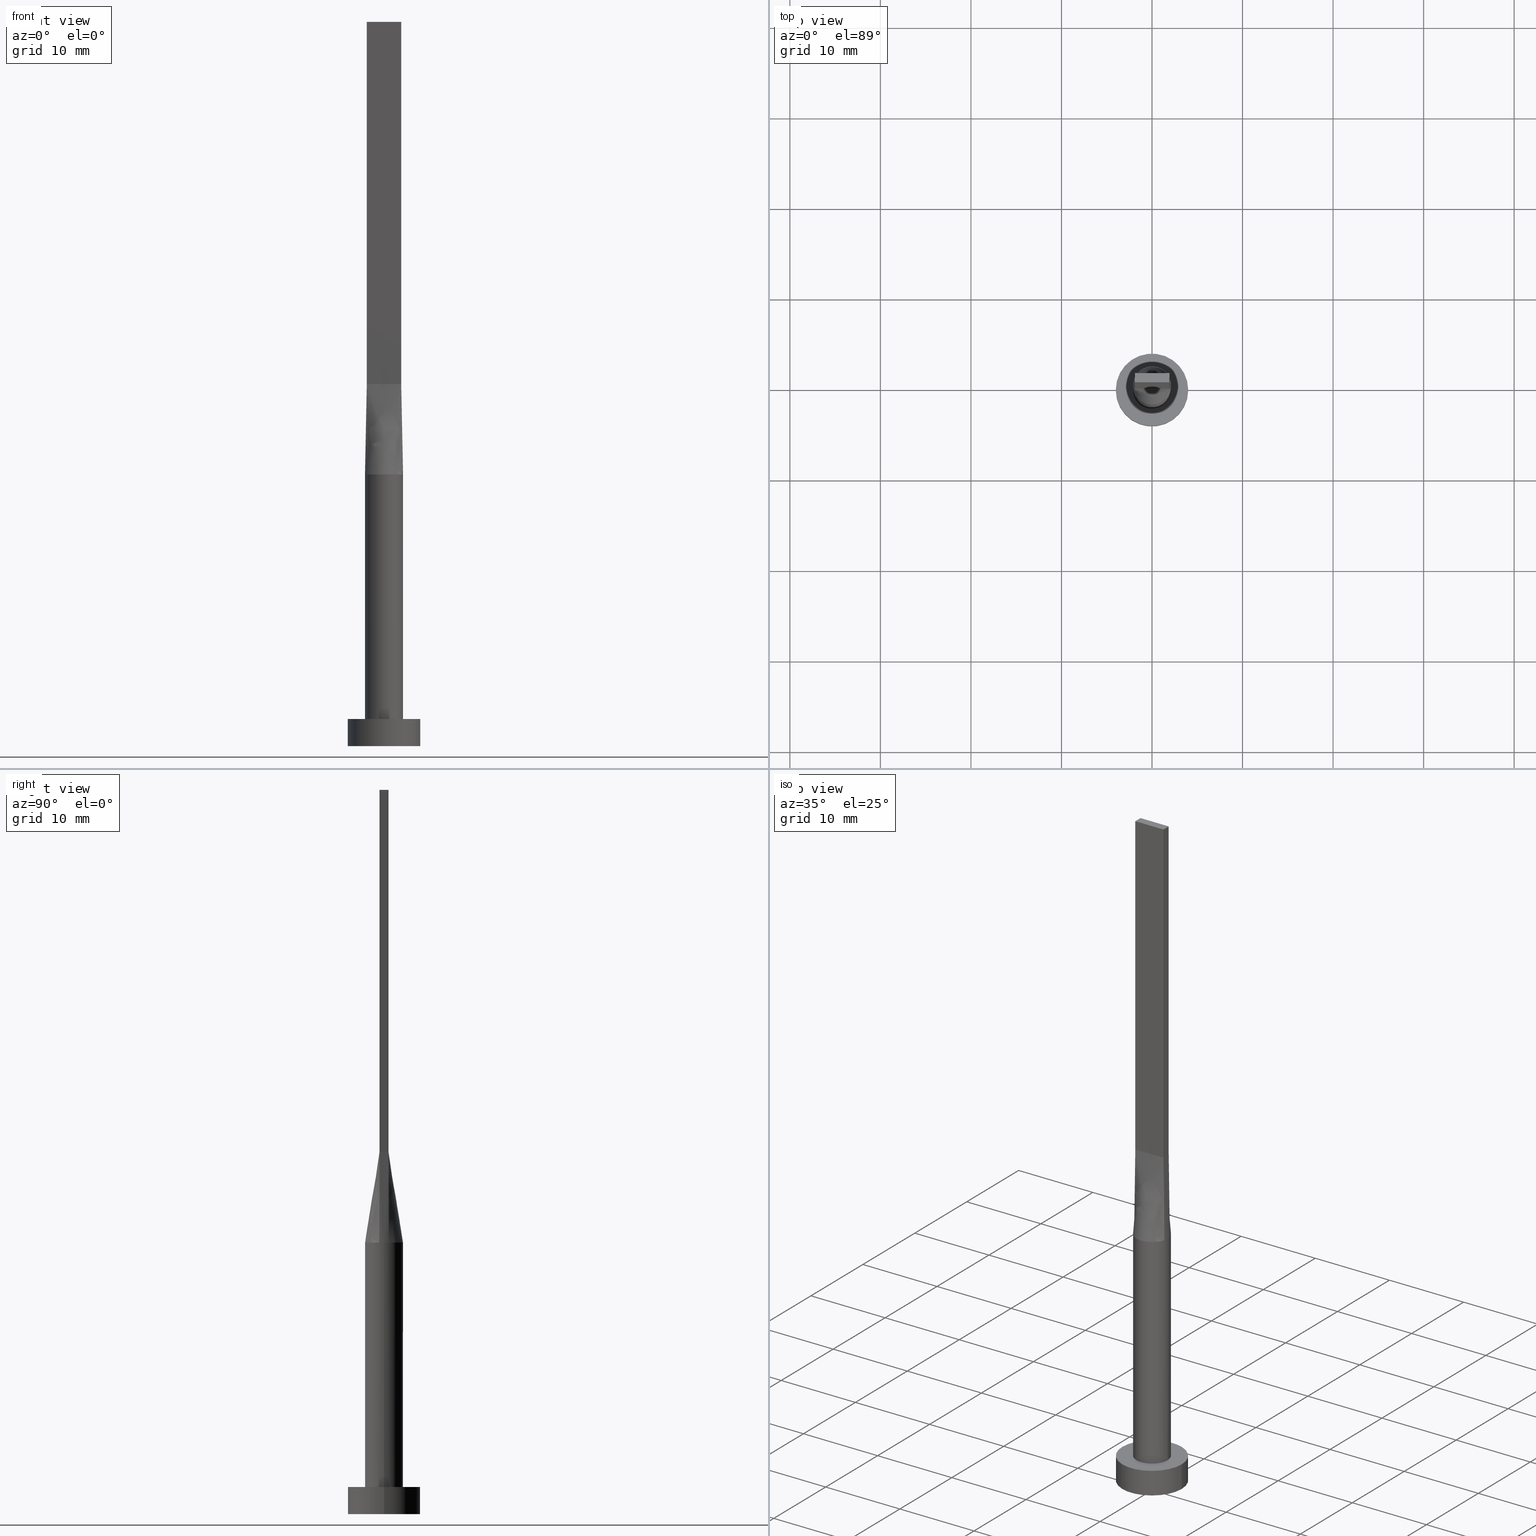
[diagram: canonical four-view strip — front | top / right | iso, engineering-drawing reading convention]
A machine part, canonical four-view strip (front | top / right | iso — engineering-drawing reading convention). The complete STEP part file that produces these views, byte-faithful:
ISO-10303-21;
HEADER;
FILE_DESCRIPTION (( 'STEP AP203' ),
    '1' );
FILE_NAME ('8962.STEP',
    '2023-02-13T11:25:45',
    ( '' ),
    ( '' ),
    'SwSTEP 2.0',
    'SolidWorks 2019',
    '' );
FILE_SCHEMA (( 'CONFIG_CONTROL_DESIGN' ));
ENDSEC;

DATA;
#1 = EDGE_CURVE ( 'NONE', #156, #295, #469, .T. ) ;
#2 = CARTESIAN_POINT ( 'NONE',  ( -1.583604922800830428, 1.399063468093436402, 29.99999999999999289 ) ) ;
#3 = AXIS2_PLACEMENT_3D ( 'NONE', #362, #480, #24 ) ;
#4 = EDGE_CURVE ( 'NONE', #156, #260, #410, .T. ) ;
#5 = DIRECTION ( 'NONE',  ( 0.000000000000000000, 0.000000000000000000, 1.000000000000000000 ) ) ;
#6 = CARTESIAN_POINT ( 'NONE',  ( 4.000000000000000000, 4.898587196589412829E-16, 0.000000000000000000 ) ) ;
#7 = ORIENTED_EDGE ( 'NONE', *, *, #224, .F. ) ;
#8 = CARTESIAN_POINT ( 'NONE',  ( 0.2698109971861026857, -2.100000000000000977, 30.00000000000001066 ) ) ;
#9 = AXIS2_PLACEMENT_3D ( 'NONE', #398, #450, #498 ) ;
#10 = CARTESIAN_POINT ( 'NONE',  ( 2.076193315816325047, 0.3621561357411385851, 30.00000000000000355 ) ) ;
#11 = LINE ( 'NONE', #509, #113 ) ;
#12 = DIRECTION ( 'NONE',  ( 0.000000000000000000, 0.000000000000000000, 1.000000000000000000 ) ) ;
#13 = CARTESIAN_POINT ( 'NONE',  ( 1.583604922800829984, -1.399063468093436846, 29.99999999999998934 ) ) ;
#14 = EDGE_CURVE ( 'NONE', #488, #80, #297, .T. ) ;
#15 = DATE_TIME_ROLE ( 'creation_date' ) ;
#16 = CARTESIAN_POINT ( 'NONE',  ( 1.021961681204344830, -1.852908961101259910, 30.00000000000000000 ) ) ;
#17 = CARTESIAN_POINT ( 'NONE',  ( 0.000000000000000000, 0.000000000000000000, 30.00000000000000000 ) ) ;
#18 = APPROVAL ( #57, 'NEUR�EN�' ) ;
#19 = ORIENTED_EDGE ( 'NONE', *, *, #270, .T. ) ;
#20 = PERSON_AND_ORGANIZATION ( #27, #169 ) ;
#21 = DIRECTION ( 'NONE',  ( -2.168404344971009361E-16, -1.000000000000000000, 0.000000000000000000 ) ) ;
#22 = ORIENTED_EDGE ( 'NONE', *, *, #190, .T. ) ;
#23 = CARTESIAN_POINT ( 'NONE',  ( 0.6333333333333344140, -0.4999999999999997780, 39.99999999999999289 ) ) ;
#24 = DIRECTION ( 'NONE',  ( -1.000000000000000000, 0.000000000000000000, 0.000000000000000000 ) ) ;
#25 = DIRECTION ( 'NONE',  ( -0.000000000000000000, -0.000000000000000000, -1.000000000000000000 ) ) ;
#26 = B_SPLINE_SURFACE_WITH_KNOTS ( 'NONE', 3, 1, ( 
 ( #143, #106 ),
 ( #463, #466 ),
 ( #274, #559 ),
 ( #549, #382 ),
 ( #65, #470 ),
 ( #433, #54 ) ),
 .UNSPECIFIED., .F., .F., .F.,
 ( 4, 2, 4 ),
 ( 2, 2 ),
 ( 0.000000000000000000, 0.5000000000000000000, 1.000000000000000000 ),
 ( 0.000000000000000000, 1.000000000000000000 ),
 .UNSPECIFIED. ) ;
#27 = PERSON ( 'NEUR�EN�', 'NEUR�EN�', 'NEUR�EN�', ('NEUR�EN�'), ('NEUR�EN�'), ('NEUR�EN�') ) ;
#28 = FACE_OUTER_BOUND ( 'NONE', #50, .T. ) ;
#29 = CARTESIAN_POINT ( 'NONE',  ( 0.5389299406762297906, 2.046272663899431077, 30.00000000000000355 ) ) ;
#30 = CARTESIAN_POINT ( 'NONE',  ( 1.899999999999999023, -0.4999999999999997780, 40.00000000000000000 ) ) ;
#31 = VERTEX_POINT ( 'NONE', #255 ) ;
#32 = DIRECTION ( 'NONE',  ( -1.000000000000000000, 5.706327223607918787E-17, 0.000000000000000000 ) ) ;
#33 = EDGE_LOOP ( 'NONE', ( #462, #160, #440, #262 ) ) ;
#34 = CARTESIAN_POINT ( 'NONE',  ( -1.719043754744861596, 1.223020672007445242, 29.99999999999999289 ) ) ;
#35 = CARTESIAN_POINT ( 'NONE',  ( -2.031004407172260162, -0.5344754071304557153, 30.00000000000000000 ) ) ;
#36 = DIRECTION ( 'NONE',  ( -0.000000000000000000, -0.000000000000000000, -1.000000000000000000 ) ) ;
#37 = FACE_OUTER_BOUND ( 'NONE', #38, .T. ) ;
#38 = EDGE_LOOP ( 'NONE', ( #123, #534, #168, #132 ) ) ;
#39 = VECTOR ( 'NONE', #368, 1000.000000000000000 ) ;
#40 = EDGE_CURVE ( 'NONE', #80, #472, #249, .T. ) ;
#41 = LOCAL_TIME ( 12, 25, 45.00000000000000000, #552 ) ;
#42 = CARTESIAN_POINT ( 'NONE',  ( -1.235326090059015725, -1.714395692508636104, 29.99999999999998224 ) ) ;
#43 = DIRECTION ( 'NONE',  ( 1.000000000000000000, 0.000000000000000000, 0.000000000000000000 ) ) ;
#44 = CARTESIAN_POINT ( 'NONE',  ( 0.3166666666666676511, -0.4999999999999997780, 39.99999999999999289 ) ) ;
#45 = CARTESIAN_POINT ( 'NONE',  ( 4.000000000000000000, 4.898587196589412829E-16, 3.000000000000000000 ) ) ;
#46 = CARTESIAN_POINT ( 'NONE',  ( 1.021961681204346606, 1.852908961101259244, 30.00000000000000355 ) ) ;
#47 = EDGE_CURVE ( 'NONE', #260, #272, #79, .T. ) ;
#48 = VERTEX_POINT ( 'NONE', #432 ) ;
#49 = AXIS2_PLACEMENT_3D ( 'NONE', #399, #571, #163 ) ;
#50 = EDGE_LOOP ( 'NONE', ( #322, #467, #136, #526, #119, #513 ) ) ;
#51 = ORIENTED_EDGE ( 'NONE', *, *, #253, .F. ) ;
#52 = CALENDAR_DATE ( 2023, 13, 2 ) ;
#53 = B_SPLINE_CURVE_WITH_KNOTS ( 'NONE', 3,
 ( #481, #566, #294, #412, #538, #83, #46, #414, #542, #263, #315, #222, #496, #2, #130, #313, #264, #446 ),
 .UNSPECIFIED., .F., .F.,
 ( 4, 2, 2, 2, 2, 2, 2, 2, 4 ),
 ( 0.000000000000000000, 0.1250000000000000278, 0.2500000000000000555, 0.3750000000000001110, 0.5000000000000000000, 0.6250000000000000000, 0.7500000000000000000, 0.8750000000000001110, 1.000000000000000000 ),
 .UNSPECIFIED. ) ;
#54 = CARTESIAN_POINT ( 'NONE',  ( -1.899999999999999911, -0.4999999999999995559, 40.00000000000000000 ) ) ;
#55 = ORIENTED_EDGE ( 'NONE', *, *, #98, .F. ) ;
#56 = ADVANCED_FACE ( 'NONE', ( #351 ), #346, .F. ) ;
#57 = APPROVAL_STATUS ( 'not_yet_approved' ) ;
#58 = LINE ( 'NONE', #475, #373 ) ;
#59 = EDGE_LOOP ( 'NONE', ( #520, #565, #19, #383 ) ) ;
#60 = PERSON_AND_ORGANIZATION_ROLE ( 'design_supplier' ) ;
#61 = CARTESIAN_POINT ( 'NONE',  ( 4.000000000000000000, 4.898587196589412829E-16, 3.000000000000000000 ) ) ;
#62 = ORIENTED_EDGE ( 'NONE', *, *, #492, .F. ) ;
#63 = APPROVAL_DATE_TIME ( #476, #312 ) ;
#64 = ADVANCED_FACE ( 'NONE', ( #285 ), #402, .F. ) ;
#65 = CARTESIAN_POINT ( 'NONE',  ( -2.076193315816325491, -0.3621561357411375859, 30.00000000000000355 ) ) ;
#66 = VECTOR ( 'NONE', #318, 1000.000000000000000 ) ;
#67 = CC_DESIGN_SECURITY_CLASSIFICATION ( #471, ( #570 ) ) ;
#68 = CARTESIAN_POINT ( 'NONE',  ( 0.000000000000000000, 0.000000000000000000, 30.00000000000000000 ) ) ;
#69 = DIRECTION ( 'NONE',  ( 1.000000000000000000, -5.706327223607920020E-17, 0.000000000000000000 ) ) ;
#70 = ORIENTED_EDGE ( 'NONE', *, *, #316, .T. ) ;
#71 = DIRECTION ( 'NONE',  ( -0.000000000000000000, -0.000000000000000000, -1.000000000000000000 ) ) ;
#72 = CARTESIAN_POINT ( 'NONE',  ( -0.7916666666666650753, -0.4999999999999995559, 39.99999999999999289 ) ) ;
#73 = CYLINDRICAL_SURFACE ( 'NONE', #3, 4.000000000000000000 ) ;
#74 = VERTEX_POINT ( 'NONE', #252 ) ;
#75 = EDGE_CURVE ( 'NONE', #74, #275, #53, .T. ) ;
#76 = FACE_OUTER_BOUND ( 'NONE', #95, .T. ) ;
#77 = DIRECTION ( 'NONE',  ( -0.01308445504626047293, -0.003443277643752733208, -0.9999084662483913588 ) ) ;
#78 = CARTESIAN_POINT ( 'NONE',  ( -1.021961681204347050, -1.852908961101258578, 29.99999999999999289 ) ) ;
#79 = CIRCLE ( 'NONE', #490, 4.000000000000000000 ) ;
#80 = VERTEX_POINT ( 'NONE', #35 ) ;
#81 = VECTOR ( 'NONE', #21, 1000.000000000000000 ) ;
#82 = DIRECTION ( 'NONE',  ( -6.505213034913026604E-16, -1.000000000000000000, 0.000000000000000000 ) ) ;
#83 = CARTESIAN_POINT ( 'NONE',  ( 1.235326090059014614, 1.714395692508636770, 30.00000000000001421 ) ) ;
#84 = CARTESIAN_POINT ( 'NONE',  ( 1.583333333333332815, 0.5000000000000002220, 40.00000000000000000 ) ) ;
#85 = CARTESIAN_POINT ( 'NONE',  ( 1.987786580065029174, 0.6981017315960605929, 30.00000000000000355 ) ) ;
#86 = CARTESIAN_POINT ( 'NONE',  ( -1.965428264125778535, 0.5172179642436262048, 35.00000000000000000 ) ) ;
#87 = CIRCLE ( 'NONE', #304, 2.100000000000000089 ) ;
#88 = CARTESIAN_POINT ( 'NONE',  ( -2.030856528251557602, 0.5344359284872521876, 30.00000000000000000 ) ) ;
#89 = ADVANCED_FACE ( 'NONE', ( #37 ), #116, .T. ) ;
#90 = CARTESIAN_POINT ( 'NONE',  ( 0.6333333333333323045, 0.5000000000000002220, 39.99999999999999289 ) ) ;
#91 = ORIENTED_EDGE ( 'NONE', *, *, #464, .T. ) ;
#92 = VECTOR ( 'NONE', #122, 1000.000000000000000 ) ;
#93 = CARTESIAN_POINT ( 'NONE',  ( -0.6333333333333316384, -0.4999999999999996669, 39.99999999999999289 ) ) ;
#94 = FACE_OUTER_BOUND ( 'NONE', #435, .T. ) ;
#95 = EDGE_LOOP ( 'NONE', ( #454, #523, #575, #221, #99 ) ) ;
#96 = CARTESIAN_POINT ( 'NONE',  ( 1.899999999999999689, -0.3333333333333329263, 39.99999999999999289 ) ) ;
#97 = DIRECTION ( 'NONE',  ( -2.168404344971008868E-16, 1.000000000000000000, -0.000000000000000000 ) ) ;
#98 = EDGE_CURVE ( 'NONE', #275, #31, #293, .T. ) ;
#99 = ORIENTED_EDGE ( 'NONE', *, *, #150, .F. ) ;
#100 = ORIENTED_EDGE ( 'NONE', *, *, #166, .F. ) ;
#101 = AXIS2_PLACEMENT_3D ( 'NONE', #407, #501, #43 ) ;
#102 = COORDINATED_UNIVERSAL_TIME_OFFSET ( 1, 0, .AHEAD. ) ;
#103 = CIRCLE ( 'NONE', #406, 2.100000000000000089 ) ;
#104 = CARTESIAN_POINT ( 'NONE',  ( 1.266666666666667052, -0.4999999999999997780, 40.00000000000000000 ) ) ;
#105 = CC_DESIGN_PERSON_AND_ORGANIZATION_ASSIGNMENT ( #236, #474, ( #229 ) ) ;
#106 = CARTESIAN_POINT ( 'NONE',  ( -1.899999999999999689, 0.5000000000000002220, 40.00000000000000000 ) ) ;
#107 = ORIENTED_EDGE ( 'NONE', *, *, #4, .T. ) ;
#108 = PRODUCT_DEFINITION_SHAPE ( 'NONE', 'NONE',  #229 ) ;
#109 = CARTESIAN_POINT ( 'NONE',  ( 0.000000000000000000, 0.000000000000000000, 3.000000000000000000 ) ) ;
#110 = LINE ( 'NONE', #291, #356 ) ;
#111 = EDGE_LOOP ( 'NONE', ( #22, #219, #306, #427 ) ) ;
#112 = PERSON_AND_ORGANIZATION ( #27, #169 ) ;
#113 = VECTOR ( 'NONE', #519, 1000.000000000000000 ) ;
#114 = CARTESIAN_POINT ( 'NONE',  ( 1.899999999999999689, 0.5000000000000002220, 80.00000000000000000 ) ) ;
#115 = VECTOR ( 'NONE', #71, 1000.000000000000000 ) ;
#116 = B_SPLINE_SURFACE_WITH_KNOTS ( 'NONE', 3, 1, ( 
 ( #215, #218 ),
 ( #85, #453 ),
 ( #172, #84 ),
 ( #493, #411 ),
 ( #449, #364 ),
 ( #544, #167 ),
 ( #503, #90 ),
 ( #29, #376 ),
 ( #276, #144 ),
 ( #514, #327 ),
 ( #551, #234 ),
 ( #197, #332 ),
 ( #211, #283 ),
 ( #401, #489 ),
 ( #34, #355 ),
 ( #240, #443 ),
 ( #193, #244 ),
 ( #88, #371 ) ),
 .UNSPECIFIED., .F., .F., .F.,
 ( 4, 2, 2, 2, 2, 2, 2, 2, 4 ),
 ( 2, 2 ),
 ( 0.000000000000000000, 0.1250000000000000278, 0.2500000000000000555, 0.3750000000000001110, 0.5000000000000000000, 0.6250000000000000000, 0.7500000000000000000, 0.8750000000000001110, 1.000000000000000000 ),
 ( 0.000000000000000000, 1.000000000000000000 ),
 .UNSPECIFIED. ) ;
#117 = LINE ( 'NONE', #521, #434 ) ;
#118 = LINE ( 'NONE', #305, #153 ) ;
#119 = ORIENTED_EDGE ( 'NONE', *, *, #366, .T. ) ;
#120 = EDGE_CURVE ( 'NONE', #188, #486, #226, .T. ) ;
#121 = CARTESIAN_POINT ( 'NONE',  ( 1.899999999999999023, -0.4999999999999997780, 80.00000000000000000 ) ) ;
#122 = DIRECTION ( 'NONE',  ( 6.505213034913026604E-16, 1.000000000000000000, 0.000000000000000000 ) ) ;
#123 = ORIENTED_EDGE ( 'NONE', *, *, #75, .T. ) ;
#124 = VECTOR ( 'NONE', #77, 1000.000000000000114 ) ;
#125 = EDGE_LOOP ( 'NONE', ( #148, #280, #510, #574, #55, #567 ) ) ;
#126 =( GEOMETRIC_REPRESENTATION_CONTEXT ( 3 ) GLOBAL_UNCERTAINTY_ASSIGNED_CONTEXT ( ( #448 ) ) GLOBAL_UNIT_ASSIGNED_CONTEXT ( ( #258, #395, #358 ) ) REPRESENTATION_CONTEXT ( 'NONE', 'WORKASPACE' ) );
#127 = CC_DESIGN_DATE_AND_TIME_ASSIGNMENT ( #189, #15, ( #229 ) ) ;
#128 = CARTESIAN_POINT ( 'NONE',  ( -1.899999999999999689, 0.5000000000000002220, 80.00000000000000000 ) ) ;
#129 = DESIGN_CONTEXT ( 'detailed design', #208, 'design' ) ;
#130 = CARTESIAN_POINT ( 'NONE',  ( -1.719043754744861596, 1.223020672007445242, 29.99999999999999289 ) ) ;
#131 = CARTESIAN_POINT ( 'NONE',  ( -1.719043754744862484, -1.223020672007444798, 29.99999999999998224 ) ) ;
#132 = ORIENTED_EDGE ( 'NONE', *, *, #325, .F. ) ;
#133 = AXIS2_PLACEMENT_3D ( 'NONE', #121, #265, #82 ) ;
#134 = CARTESIAN_POINT ( 'NONE',  ( -2.100000000000000089, 0.000000000000000000, 3.000000000000000000 ) ) ;
#135 = CARTESIAN_POINT ( 'NONE',  ( -0.5389299406762309008, -2.046272663899432409, 30.00000000000000711 ) ) ;
#136 = ORIENTED_EDGE ( 'NONE', *, *, #40, .F. ) ;
#137 = CARTESIAN_POINT ( 'NONE',  ( 2.100000000000000089, 0.1811271572287802556, 30.00000000000000000 ) ) ;
#138 = CARTESIAN_POINT ( 'NONE',  ( -1.899999999999999911, -0.4999999999999995559, 40.00000000000000000 ) ) ;
#139 = AXIS2_PLACEMENT_3D ( 'NONE', #205, #338, #298 ) ;
#140 = CARTESIAN_POINT ( 'NONE',  ( -0.1583333333333323267, -0.4999999999999997780, 40.00000000000000000 ) ) ;
#141 = ADVANCED_FACE ( 'NONE', ( #321 ), #147, .T. ) ;
#142 = CARTESIAN_POINT ( 'NONE',  ( 1.899999999999999911, -0.4999999999999997780, 40.00000000000000000 ) ) ;
#143 = CARTESIAN_POINT ( 'NONE',  ( -2.030856528251557602, 0.5344359284872521876, 30.00000000000000000 ) ) ;
#144 = CARTESIAN_POINT ( 'NONE',  ( 0.1583333333333324933, 0.5000000000000002220, 39.99999999999999289 ) ) ;
#145 = APPROVAL_DATE_TIME ( #431, #214 ) ;
#146 = CARTESIAN_POINT ( 'NONE',  ( 0.5389299406762287914, -2.046272663899431965, 30.00000000000000355 ) ) ;
#147 = PLANE ( 'NONE',  #415 ) ;
#148 = ORIENTED_EDGE ( 'NONE', *, *, #413, .F. ) ;
#149 = CARTESIAN_POINT ( 'NONE',  ( -1.899999999999999689, 0.5000000000000002220, 40.00000000000000000 ) ) ;
#150 = EDGE_CURVE ( 'NONE', #472, #336, #58, .T. ) ;
#151 = VECTOR ( 'NONE', #97, 1000.000000000000000 ) ;
#152 = PERSON_AND_ORGANIZATION ( #27, #169 ) ;
#153 = VECTOR ( 'NONE', #254, 1000.000000000000000 ) ;
#154 = DIRECTION ( 'NONE',  ( 0.000000000000000000, -0.000000000000000000, -1.000000000000000000 ) ) ;
#155 = FACE_OUTER_BOUND ( 'NONE', #111, .T. ) ;
#156 = VERTEX_POINT ( 'NONE', #61 ) ;
#157 = ORIENTED_EDGE ( 'NONE', *, *, #120, .T. ) ;
#158 = DIRECTION ( 'NONE',  ( 1.000000000000000000, 0.000000000000000000, 0.000000000000000000 ) ) ;
#159 = CARTESIAN_POINT ( 'NONE',  ( -1.899999999999999911, -0.4999999999999995559, 40.00000000000000000 ) ) ;
#160 = ORIENTED_EDGE ( 'NONE', *, *, #473, .F. ) ;
#161 = EDGE_CURVE ( 'NONE', #336, #486, #196, .T. ) ;
#162 = CYLINDRICAL_SURFACE ( 'NONE', #199, 2.100000000000000089 ) ;
#163 = DIRECTION ( 'NONE',  ( -1.000000000000000000, 0.000000000000000000, 0.000000000000000000 ) ) ;
#164 = DIRECTION ( 'NONE',  ( 0.01308445504626045038, -0.003443277643752733208, 0.9999084662483913588 ) ) ;
#165 = LINE ( 'NONE', #114, #560 ) ;
#166 = EDGE_CURVE ( 'NONE', #272, #260, #579, .T. ) ;
#167 = CARTESIAN_POINT ( 'NONE',  ( 0.7916666666666657415, 0.5000000000000002220, 39.99999999999999289 ) ) ;
#168 = ORIENTED_EDGE ( 'NONE', *, *, #464, .F. ) ;
#169 = ORGANIZATION ( 'NEUR�EN�', 'NEUR�EN�', '' ) ;
#170 = FACE_OUTER_BOUND ( 'NONE', #340, .T. ) ;
#171 = DIRECTION ( 'NONE',  ( 0.000000000000000000, 0.000000000000000000, 1.000000000000000000 ) ) ;
#172 = CARTESIAN_POINT ( 'NONE',  ( 1.920830191244603746, 0.8725264301372623876, 29.99999999999998934 ) ) ;
#173 = ORIENTED_EDGE ( 'NONE', *, *, #573, .T. ) ;
#174 = CARTESIAN_POINT ( 'NONE',  ( 1.899999999999999689, 0.5000000000000002220, 80.00000000000000000 ) ) ;
#175 = ADVANCED_FACE ( 'NONE', ( #94 ), #26, .T. ) ;
#176 = VECTOR ( 'NONE', #477, 1000.000000000000000 ) ;
#177 = VECTOR ( 'NONE', #164, 1000.000000000000114 ) ;
#178 = VERTEX_POINT ( 'NONE', #553 ) ;
#179 = CARTESIAN_POINT ( 'NONE',  ( 2.100000000000000089, -0.1811271572287806442, 30.00000000000000355 ) ) ;
#180 = PRODUCT_RELATED_PRODUCT_CATEGORY ( 'detail', '', ( #344 ) ) ;
#181 = CARTESIAN_POINT ( 'NONE',  ( -0.2698109971861053502, -2.100000000000000089, 30.00000000000001066 ) ) ;
#182 = CARTESIAN_POINT ( 'NONE',  ( 2.076193315816324603, -0.3621561357411388626, 30.00000000000000000 ) ) ;
#183 = FACE_OUTER_BOUND ( 'NONE', #223, .T. ) ;
#184 = CIRCLE ( 'NONE', #9, 2.100000000000000089 ) ;
#185 = PERSON_AND_ORGANIZATION_ROLE ( 'classification_officer' ) ;
#186 = CARTESIAN_POINT ( 'NONE',  ( 0.1583333333333341586, -0.4999999999999997780, 39.99999999999999289 ) ) ;
#187 = MANIFOLD_SOLID_BREP ( 'P�idat vysunut�m5', #569 ) ;
#188 = VERTEX_POINT ( 'NONE', #479 ) ;
#189 = DATE_AND_TIME ( #384, #41 ) ;
#190 = EDGE_CURVE ( 'NONE', #488, #336, #233, .T. ) ;
#191 = DIRECTION ( 'NONE',  ( 1.000000000000000000, 0.000000000000000000, 0.000000000000000000 ) ) ;
#192 = ORIENTED_EDGE ( 'NONE', *, *, #502, .T. ) ;
#193 = CARTESIAN_POINT ( 'NONE',  ( -1.987786580065029174, 0.6981017315960602598, 30.00000000000000000 ) ) ;
#194 = CARTESIAN_POINT ( 'NONE',  ( 0.000000000000000000, 0.000000000000000000, 0.000000000000000000 ) ) ;
#195 = CARTESIAN_POINT ( 'NONE',  ( 1.920830191244603302, -0.8725264301372632758, 30.00000000000000711 ) ) ;
#196 = LINE ( 'NONE', #385, #151 ) ;
#197 = CARTESIAN_POINT ( 'NONE',  ( -1.021961681204346384, 1.852908961101259022, 30.00000000000000000 ) ) ;
#198 = CALENDAR_DATE ( 2023, 13, 2 ) ;
#199 = AXIS2_PLACEMENT_3D ( 'NONE', #342, #530, #299 ) ;
#200 = CARTESIAN_POINT ( 'NONE',  ( 0.000000000000000000, 0.000000000000000000, 0.000000000000000000 ) ) ;
#201 = DIRECTION ( 'NONE',  ( 0.000000000000000000, 0.000000000000000000, 1.000000000000000000 ) ) ;
#202 = B_SPLINE_SURFACE_WITH_KNOTS ( 'NONE', 3, 1, ( 
 ( #404, #576 ),
 ( #578, #359 ),
 ( #311, #308 ),
 ( #131, #533 ),
 ( #497, #499 ),
 ( #42, #72 ),
 ( #78, #93 ),
 ( #135, #421 ),
 ( #181, #140 ),
 ( #8, #186 ),
 ( #146, #44 ),
 ( #16, #23 ),
 ( #237, #425 ),
 ( #13, #242 ),
 ( #329, #104 ),
 ( #195, #581 ),
 ( #217, #296 ),
 ( #360, #30 ) ),
 .UNSPECIFIED., .F., .F., .F.,
 ( 4, 2, 2, 2, 2, 2, 2, 2, 4 ),
 ( 2, 2 ),
 ( 0.000000000000000000, 0.1250000000000000555, 0.2500000000000001665, 0.3750000000000002776, 0.5000000000000003331, 0.6250000000000002220, 0.7500000000000002220, 0.8750000000000001110, 1.000000000000000000 ),
 ( 0.000000000000000000, 1.000000000000000000 ),
 .UNSPECIFIED. ) ;
#203 = ORIENTED_EDGE ( 'NONE', *, *, #4, .F. ) ;
#204 = APPROVAL_STATUS ( 'not_yet_approved' ) ;
#205 = CARTESIAN_POINT ( 'NONE',  ( 0.000000000000000000, 0.000000000000000000, 3.000000000000000000 ) ) ;
#206 = ORIENTED_EDGE ( 'NONE', *, *, #98, .T. ) ;
#207 = CARTESIAN_POINT ( 'NONE',  ( 1.899999999999999023, -0.4999999999999997780, 40.00000000000000000 ) ) ;
#208 = APPLICATION_CONTEXT ( 'configuration controlled 3d designs of mechanical parts and assemblies' ) ;
#209 = CYLINDRICAL_SURFACE ( 'NONE', #49, 2.100000000000000089 ) ;
#210 = CARTESIAN_POINT ( 'NONE',  ( 0.000000000000000000, 0.000000000000000000, 3.000000000000000000 ) ) ;
#211 = CARTESIAN_POINT ( 'NONE',  ( -1.235326090059014836, 1.714395692508636326, 30.00000000000000000 ) ) ;
#212 = DIRECTION ( 'NONE',  ( 1.000000000000000000, 0.000000000000000000, -0.000000000000000000 ) ) ;
#213 = LINE ( 'NONE', #482, #491 ) ;
#214 = APPROVAL ( #515, 'NEUR�EN�' ) ;
#215 = CARTESIAN_POINT ( 'NONE',  ( 2.030856528251557602, 0.5344359284872521876, 30.00000000000000000 ) ) ;
#216 = DIRECTION ( 'NONE',  ( 1.000000000000000000, 0.000000000000000000, 0.000000000000000000 ) ) ;
#217 = CARTESIAN_POINT ( 'NONE',  ( 1.987786580065029396, -0.6981017315960611480, 30.00000000000001066 ) ) ;
#218 = CARTESIAN_POINT ( 'NONE',  ( 1.899999999999999689, 0.5000000000000002220, 40.00000000000000000 ) ) ;
#219 = ORIENTED_EDGE ( 'NONE', *, *, #316, .F. ) ;
#220 = LOCAL_TIME ( 12, 25, 45.00000000000000000, #102 ) ;
#221 = ORIENTED_EDGE ( 'NONE', *, *, #161, .F. ) ;
#222 = CARTESIAN_POINT ( 'NONE',  ( -1.021961681204346384, 1.852908961101259022, 30.00000000000000000 ) ) ;
#223 = EDGE_LOOP ( 'NONE', ( #494, #107, #309, #465 ) ) ;
#224 = EDGE_CURVE ( 'NONE', #239, #363, #11, .T. ) ;
#225 = CARTESIAN_POINT ( 'NONE',  ( 1.899999999999999689, 0.5000000000000002220, 40.00000000000000000 ) ) ;
#226 = LINE ( 'NONE', #174, #39 ) ;
#227 = AXIS2_PLACEMENT_3D ( 'NONE', #288, #563, #154 ) ;
#228 = VECTOR ( 'NONE', #422, 1000.000000000000000 ) ;
#229 = PRODUCT_DEFINITION ( 'NEZN�M�', '', #570, #129 ) ;
#230 = VERTEX_POINT ( 'NONE', #238 ) ;
#231 = LINE ( 'NONE', #149, #228 ) ;
#232 = PERSON_AND_ORGANIZATION_ROLE ( 'creator' ) ;
#233 = LINE ( 'NONE', #138, #66 ) ;
#234 = CARTESIAN_POINT ( 'NONE',  ( -0.3166666666666672625, 0.5000000000000002220, 39.99999999999999289 ) ) ;
#235 = LOCAL_TIME ( 12, 25, 45.00000000000000000, #284 ) ;
#236 = PERSON_AND_ORGANIZATION ( #27, #169 ) ;
#237 = CARTESIAN_POINT ( 'NONE',  ( 1.235326090059013504, -1.714395692508636548, 29.99999999999999289 ) ) ;
#238 = CARTESIAN_POINT ( 'NONE',  ( 2.100000000000000089, 3.372022381799045987E-17, 30.00000000000000000 ) ) ;
#239 = VERTEX_POINT ( 'NONE', #286 ) ;
#240 = CARTESIAN_POINT ( 'NONE',  ( -1.920830191244604412, 0.8725264301372623876, 29.99999999999999645 ) ) ;
#241 = COORDINATED_UNIVERSAL_TIME_OFFSET ( 1, 0, .AHEAD. ) ;
#242 = CARTESIAN_POINT ( 'NONE',  ( 1.108333333333334059, -0.4999999999999997780, 40.00000000000000000 ) ) ;
#243 = EDGE_LOOP ( 'NONE', ( #455, #375 ) ) ;
#244 = CARTESIAN_POINT ( 'NONE',  ( -1.741666666666666696, 0.5000000000000002220, 39.99999999999999289 ) ) ;
#245 = SHAPE_DEFINITION_REPRESENTATION ( #108, #390 ) ;
#246 = DIRECTION ( 'NONE',  ( 1.000000000000000000, 0.000000000000000000, 0.000000000000000000 ) ) ;
#247 = CARTESIAN_POINT ( 'NONE',  ( 0.000000000000000000, 0.000000000000000000, 80.00000000000000000 ) ) ;
#248 = EDGE_LOOP ( 'NONE', ( #91, #7, #343, #157 ) ) ;
#249 = CIRCLE ( 'NONE', #516, 2.100000000000000089 ) ;
#250 = APPLICATION_PROTOCOL_DEFINITION ( 'international standard', 'config_control_design', 1994, #208 ) ;
#251 = CC_DESIGN_APPROVAL ( #214, ( #229 ) ) ;
#252 = CARTESIAN_POINT ( 'NONE',  ( 2.030996101999494652, 0.5344731476277209126, 30.00000000000000000 ) ) ;
#253 = EDGE_CURVE ( 'NONE', #178, #417, #451, .T. ) ;
#254 = DIRECTION ( 'NONE',  ( -0.000000000000000000, -0.000000000000000000, -1.000000000000000000 ) ) ;
#255 = CARTESIAN_POINT ( 'NONE',  ( -2.100000000000000089, -1.080980291041873360E-16, 30.00000000000000000 ) ) ;
#256 = AXIS2_PLACEMENT_3D ( 'NONE', #310, #171, #458 ) ;
#257 = EDGE_CURVE ( 'NONE', #363, #488, #231, .T. ) ;
#258 =( LENGTH_UNIT ( ) NAMED_UNIT ( * ) SI_UNIT ( .MILLI., .METRE. ) );
#259 = DIRECTION ( 'NONE',  ( 0.000000000000000000, 0.000000000000000000, 1.000000000000000000 ) ) ;
#260 = VERTEX_POINT ( 'NONE', #6 ) ;
#261 = FACE_OUTER_BOUND ( 'NONE', #33, .T. ) ;
#262 = ORIENTED_EDGE ( 'NONE', *, *, #224, .T. ) ;
#263 = CARTESIAN_POINT ( 'NONE',  ( -0.2698109971861040179, 2.100000000000000089, 30.00000000000000000 ) ) ;
#264 = CARTESIAN_POINT ( 'NONE',  ( -1.987786580065029174, 0.6981017315960602598, 30.00000000000000000 ) ) ;
#265 = DIRECTION ( 'NONE',  ( -1.000000000000000000, 6.505213034913026604E-16, 0.000000000000000000 ) ) ;
#266 = AXIS2_PLACEMENT_3D ( 'NONE', #442, #522, #32 ) ;
#267 = ADVANCED_FACE ( 'NONE', ( #183 ), #372, .T. ) ;
#268 = ORIENTED_EDGE ( 'NONE', *, *, #150, .T. ) ;
#269 = DIRECTION ( 'NONE',  ( 0.000000000000000000, 0.000000000000000000, 1.000000000000000000 ) ) ;
#270 = EDGE_CURVE ( 'NONE', #561, #48, #539, .T. ) ;
#271 = CARTESIAN_POINT ( 'NONE',  ( 0.000000000000000000, 0.000000000000000000, 30.00000000000000000 ) ) ;
#272 = VERTEX_POINT ( 'NONE', #389 ) ;
#273 = DIRECTION ( 'NONE',  ( 0.000000000000000000, 0.000000000000000000, 1.000000000000000000 ) ) ;
#274 = CARTESIAN_POINT ( 'NONE',  ( -2.100000000000000089, 0.1811271572287804221, 30.00000000000000000 ) ) ;
#275 = VERTEX_POINT ( 'NONE', #564 ) ;
#276 = CARTESIAN_POINT ( 'NONE',  ( 0.2698109971861041290, 2.100000000000000089, 30.00000000000000000 ) ) ;
#277 = APPROVAL_DATE_TIME ( #518, #18 ) ;
#278 = DIRECTION ( 'NONE',  ( -0.01308445504626047293, 0.003443277643752830786, 0.9999084662483913588 ) ) ;
#279 = APPROVAL_PERSON_ORGANIZATION ( #428, #312, #334 ) ;
#280 = ORIENTED_EDGE ( 'NONE', *, *, #333, .T. ) ;
#281 = EDGE_CURVE ( 'NONE', #188, #239, #165, .T. ) ;
#282 = CALENDAR_DATE ( 2023, 13, 2 ) ;
#283 = CARTESIAN_POINT ( 'NONE',  ( -0.7916666666666670737, 0.5000000000000002220, 39.99999999999999289 ) ) ;
#284 = COORDINATED_UNIVERSAL_TIME_OFFSET ( 1, 0, .AHEAD. ) ;
#285 = FACE_OUTER_BOUND ( 'NONE', #248, .T. ) ;
#286 = CARTESIAN_POINT ( 'NONE',  ( -1.899999999999999689, 0.5000000000000002220, 80.00000000000000000 ) ) ;
#287 = B_SPLINE_SURFACE_WITH_KNOTS ( 'NONE', 3, 1, ( 
 ( #302, #142 ),
 ( #182, #96 ),
 ( #179, #379 ),
 ( #137, #504 ),
 ( #10, #324 ),
 ( #546, #225 ) ),
 .UNSPECIFIED., .F., .F., .F.,
 ( 4, 2, 4 ),
 ( 2, 2 ),
 ( 0.000000000000000000, 0.5000000000000000000, 1.000000000000000000 ),
 ( 0.000000000000000000, 1.000000000000000000 ),
 .UNSPECIFIED. ) ;
#288 = CARTESIAN_POINT ( 'NONE',  ( 1.899999999999999689, 0.5000000000000002220, 80.00000000000000000 ) ) ;
#289 = DIRECTION ( 'NONE',  ( 1.000000000000000000, 0.000000000000000000, 0.000000000000000000 ) ) ;
#290 = CC_DESIGN_DATE_AND_TIME_ASSIGNMENT ( #323, #468, ( #471 ) ) ;
#291 = CARTESIAN_POINT ( 'NONE',  ( 1.965428264125778535, 0.5172179642436265379, 35.00000000000000000 ) ) ;
#292 = ORIENTED_EDGE ( 'NONE', *, *, #512, .F. ) ;
#293 = CIRCLE ( 'NONE', #256, 2.100000000000000089 ) ;
#294 = CARTESIAN_POINT ( 'NONE',  ( 1.920830191244603746, 0.8725264301372623876, 29.99999999999998934 ) ) ;
#295 = VERTEX_POINT ( 'NONE', #339 ) ;
#296 = CARTESIAN_POINT ( 'NONE',  ( 1.741666666666666030, -0.4999999999999997780, 40.00000000000000000 ) ) ;
#297 = LINE ( 'NONE', #484, #124 ) ;
#298 = DIRECTION ( 'NONE',  ( 1.000000000000000000, 0.000000000000000000, 0.000000000000000000 ) ) ;
#299 = DIRECTION ( 'NONE',  ( -1.000000000000000000, 0.000000000000000000, 0.000000000000000000 ) ) ;
#300 = EDGE_LOOP ( 'NONE', ( #100, #391 ) ) ;
#301 = ADVANCED_FACE ( 'NONE', ( #155 ), #335, .F. ) ;
#302 = CARTESIAN_POINT ( 'NONE',  ( 2.030856528251557158, -0.5344359284872530758, 30.00000000000000000 ) ) ;
#303 = DIRECTION ( 'NONE',  ( 2.168404344971009361E-16, 1.000000000000000000, 0.000000000000000000 ) ) ;
#304 = AXIS2_PLACEMENT_3D ( 'NONE', #271, #269, #461 ) ;
#305 = CARTESIAN_POINT ( 'NONE',  ( 1.899999999999999023, -0.4999999999999997780, 80.00000000000000000 ) ) ;
#306 = ORIENTED_EDGE ( 'NONE', *, *, #270, .F. ) ;
#307 = DIRECTION ( 'NONE',  ( 1.000000000000000000, -2.168404344971009361E-16, 0.000000000000000000 ) ) ;
#308 = CARTESIAN_POINT ( 'NONE',  ( -1.583333333333332815, -0.4999999999999995559, 40.00000000000000000 ) ) ;
#309 = ORIENTED_EDGE ( 'NONE', *, *, #47, .T. ) ;
#310 = CARTESIAN_POINT ( 'NONE',  ( 0.000000000000000000, 0.000000000000000000, 30.00000000000000000 ) ) ;
#311 = CARTESIAN_POINT ( 'NONE',  ( -1.920830191244604412, -0.8725264301372614995, 29.99999999999999289 ) ) ;
#312 = APPROVAL ( #204, 'NEUR�EN�' ) ;
#313 = CARTESIAN_POINT ( 'NONE',  ( -1.920830191244604412, 0.8725264301372623876, 29.99999999999999645 ) ) ;
#314 = AXIS2_PLACEMENT_3D ( 'NONE', #426, #273, #191 ) ;
#315 = CARTESIAN_POINT ( 'NONE',  ( -0.5389299406762299016, 2.046272663899431965, 29.99999999999999645 ) ) ;
#316 = EDGE_CURVE ( 'NONE', #48, #336, #118, .T. ) ;
#317 = LINE ( 'NONE', #508, #81 ) ;
#318 = DIRECTION ( 'NONE',  ( 1.000000000000000000, -5.706327223607918787E-17, 0.000000000000000000 ) ) ;
#319 = AXIS2_PLACEMENT_3D ( 'NONE', #554, #380, #330 ) ;
#320 = CC_DESIGN_APPROVAL ( #312, ( #471 ) ) ;
#321 = FACE_OUTER_BOUND ( 'NONE', #59, .T. ) ;
#322 = ORIENTED_EDGE ( 'NONE', *, *, #333, .F. ) ;
#323 = DATE_AND_TIME ( #377, #374 ) ;
#324 = CARTESIAN_POINT ( 'NONE',  ( 1.899999999999999467, 0.3333333333333337034, 39.99999999999999289 ) ) ;
#325 = EDGE_CURVE ( 'NONE', #74, #486, #110, .T. ) ;
#326 = EDGE_LOOP ( 'NONE', ( #203, #62, #173, #348 ) ) ;
#327 = CARTESIAN_POINT ( 'NONE',  ( -0.1583333333333339921, 0.5000000000000002220, 39.99999999999999289 ) ) ;
#328 = MECHANICAL_CONTEXT ( 'NONE', #353, 'mechanical' ) ;
#329 = CARTESIAN_POINT ( 'NONE',  ( 1.719043754744861374, -1.223020672007445908, 30.00000000000000000 ) ) ;
#330 = DIRECTION ( 'NONE',  ( 1.000000000000000000, 0.000000000000000000, 0.000000000000000000 ) ) ;
#331 = CARTESIAN_POINT ( 'NONE',  ( -1.899999999999999911, -0.4999999999999995559, 80.00000000000000000 ) ) ;
#332 = CARTESIAN_POINT ( 'NONE',  ( -0.6333333333333338588, 0.5000000000000002220, 39.99999999999999289 ) ) ;
#333 = EDGE_CURVE ( 'NONE', #230, #178, #213, .T. ) ;
#334 = APPROVAL_ROLE ( '' ) ;
#335 = PLANE ( 'NONE',  #266 ) ;
#336 = VERTEX_POINT ( 'NONE', #207 ) ;
#337 = PERSON_AND_ORGANIZATION_ROLE ( 'design_owner' ) ;
#338 = DIRECTION ( 'NONE',  ( 0.000000000000000000, 0.000000000000000000, 1.000000000000000000 ) ) ;
#339 = CARTESIAN_POINT ( 'NONE',  ( -4.000000000000000000, 0.000000000000000000, 3.000000000000000000 ) ) ;
#340 = EDGE_LOOP ( 'NONE', ( #357, #268, #403, #354 ) ) ;
#341 = CARTESIAN_POINT ( 'NONE',  ( -2.100000000000000089, 0.000000000000000000, 30.00000000000000000 ) ) ;
#342 = CARTESIAN_POINT ( 'NONE',  ( 0.000000000000000000, 0.000000000000000000, 30.00000000000000000 ) ) ;
#343 = ORIENTED_EDGE ( 'NONE', *, *, #281, .F. ) ;
#344 = PRODUCT ( '8962', '8962', '', ( #328 ) ) ;
#345 = LINE ( 'NONE', #531, #92 ) ;
#346 = PLANE ( 'NONE',  #550 ) ;
#347 = DIRECTION ( 'NONE',  ( -1.000000000000000000, 0.000000000000000000, 0.000000000000000000 ) ) ;
#348 = ORIENTED_EDGE ( 'NONE', *, *, #166, .T. ) ;
#349 = ADVANCED_FACE ( 'NONE', ( #396 ), #162, .T. ) ;
#350 = FACE_OUTER_BOUND ( 'NONE', #556, .T. ) ;
#351 = FACE_OUTER_BOUND ( 'NONE', #300, .T. ) ;
#352 = DIRECTION ( 'NONE',  ( 0.000000000000000000, 0.000000000000000000, 1.000000000000000000 ) ) ;
#353 = APPLICATION_CONTEXT ( 'configuration controlled 3d designs of mechanical parts and assemblies' ) ;
#354 = ORIENTED_EDGE ( 'NONE', *, *, #14, .T. ) ;
#355 = CARTESIAN_POINT ( 'NONE',  ( -1.266666666666666829, 0.5000000000000002220, 39.99999999999999289 ) ) ;
#356 = VECTOR ( 'NONE', #525, 1000.000000000000114 ) ;
#357 = ORIENTED_EDGE ( 'NONE', *, *, #40, .T. ) ;
#358 =( NAMED_UNIT ( * ) SI_UNIT ( $, .STERADIAN. ) SOLID_ANGLE_UNIT ( ) );
#359 = CARTESIAN_POINT ( 'NONE',  ( -1.741666666666666474, -0.4999999999999995559, 40.00000000000000000 ) ) ;
#360 = CARTESIAN_POINT ( 'NONE',  ( 2.030856528251557158, -0.5344359284872526317, 30.00000000000000000 ) ) ;
#361 = ADVANCED_FACE ( 'NONE', ( #485 ), #73, .T. ) ;
#362 = CARTESIAN_POINT ( 'NONE',  ( 0.000000000000000000, 0.000000000000000000, 3.000000000000000000 ) ) ;
#363 = VERTEX_POINT ( 'NONE', #394 ) ;
#364 = CARTESIAN_POINT ( 'NONE',  ( 1.108333333333332504, 0.5000000000000002220, 39.99999999999999289 ) ) ;
#365 = VECTOR ( 'NONE', #438, 1000.000000000000000 ) ;
#366 = EDGE_CURVE ( 'NONE', #31, #417, #537, .T. ) ;
#367 = ORIENTED_EDGE ( 'NONE', *, *, #120, .F. ) ;
#368 = DIRECTION ( 'NONE',  ( -0.000000000000000000, -0.000000000000000000, -1.000000000000000000 ) ) ;
#369 = ORIENTED_EDGE ( 'NONE', *, *, #14, .F. ) ;
#370 = PLANE ( 'NONE',  #500 ) ;
#371 = CARTESIAN_POINT ( 'NONE',  ( -1.899999999999999689, 0.5000000000000002220, 40.00000000000000000 ) ) ;
#372 = CYLINDRICAL_SURFACE ( 'NONE', #460, 4.000000000000000000 ) ;
#373 = VECTOR ( 'NONE', #278, 1000.000000000000114 ) ;
#374 = LOCAL_TIME ( 12, 25, 45.00000000000000000, #241 ) ;
#375 = ORIENTED_EDGE ( 'NONE', *, *, #1, .T. ) ;
#376 = CARTESIAN_POINT ( 'NONE',  ( 0.3166666666666656527, 0.5000000000000002220, 39.99999999999999289 ) ) ;
#377 = CALENDAR_DATE ( 2023, 13, 2 ) ;
#378 = ADVANCED_FACE ( 'NONE', ( #28 ), #209, .T. ) ;
#379 = CARTESIAN_POINT ( 'NONE',  ( 1.899999999999999689, -0.1666666666666661856, 39.99999999999999289 ) ) ;
#380 = DIRECTION ( 'NONE',  ( 0.000000000000000000, 0.000000000000000000, 1.000000000000000000 ) ) ;
#381 = APPROVAL_ROLE ( '' ) ;
#382 = CARTESIAN_POINT ( 'NONE',  ( -1.899999999999999689, -0.1666666666666663521, 39.99999999999999289 ) ) ;
#383 = ORIENTED_EDGE ( 'NONE', *, *, #386, .T. ) ;
#384 = CALENDAR_DATE ( 2023, 13, 2 ) ;
#385 = CARTESIAN_POINT ( 'NONE',  ( 1.899999999999999689, 0.5000000000000002220, 40.00000000000000000 ) ) ;
#386 = EDGE_CURVE ( 'NONE', #48, #188, #345, .T. ) ;
#387 = AXIS2_PLACEMENT_3D ( 'NONE', #68, #352, #216 ) ;
#388 = DIRECTION ( 'NONE',  ( 0.000000000000000000, 0.000000000000000000, 1.000000000000000000 ) ) ;
#389 = CARTESIAN_POINT ( 'NONE',  ( -4.000000000000000000, 0.000000000000000000, 0.000000000000000000 ) ) ;
#390 = ADVANCED_BREP_SHAPE_REPRESENTATION ( '8962', ( #187, #452 ), #126 ) ;
#391 = ORIENTED_EDGE ( 'NONE', *, *, #47, .F. ) ;
#392 = PERSON_AND_ORGANIZATION ( #27, #169 ) ;
#393 = DIRECTION ( 'NONE',  ( 0.000000000000000000, 0.000000000000000000, 1.000000000000000000 ) ) ;
#394 = CARTESIAN_POINT ( 'NONE',  ( -1.899999999999999689, 0.5000000000000002220, 40.00000000000000000 ) ) ;
#395 =( NAMED_UNIT ( * ) PLANE_ANGLE_UNIT ( ) SI_UNIT ( $, .RADIAN. ) );
#396 = FACE_OUTER_BOUND ( 'NONE', #125, .T. ) ;
#397 = CC_DESIGN_APPROVAL ( #18, ( #570 ) ) ;
#398 = CARTESIAN_POINT ( 'NONE',  ( 0.000000000000000000, 0.000000000000000000, 30.00000000000000000 ) ) ;
#399 = CARTESIAN_POINT ( 'NONE',  ( 0.000000000000000000, 0.000000000000000000, 30.00000000000000000 ) ) ;
#400 = ADVANCED_FACE ( 'NONE', ( #76 ), #287, .T. ) ;
#401 = CARTESIAN_POINT ( 'NONE',  ( -1.583604922800830428, 1.399063468093436402, 29.99999999999999289 ) ) ;
#402 = PLANE ( 'NONE',  #227 ) ;
#403 = ORIENTED_EDGE ( 'NONE', *, *, #190, .F. ) ;
#404 = CARTESIAN_POINT ( 'NONE',  ( -2.030856528251558046, -0.5344359284872515214, 30.00000000000000000 ) ) ;
#405 = CC_DESIGN_PERSON_AND_ORGANIZATION_ASSIGNMENT ( #20, #60, ( #570 ) ) ;
#406 = AXIS2_PLACEMENT_3D ( 'NONE', #109, #568, #289 ) ;
#407 = CARTESIAN_POINT ( 'NONE',  ( 0.000000000000000000, 0.000000000000000000, 3.000000000000000000 ) ) ;
#408 = APPLICATION_PROTOCOL_DEFINITION ( 'international standard', 'config_control_design', 1994, #353 ) ;
#409 = LINE ( 'NONE', #86, #177 ) ;
#410 = LINE ( 'NONE', #45, #176 ) ;
#411 = CARTESIAN_POINT ( 'NONE',  ( 1.266666666666665941, 0.5000000000000002220, 39.99999999999999289 ) ) ;
#412 = CARTESIAN_POINT ( 'NONE',  ( 1.719043754744862040, 1.223020672007445464, 29.99999999999998934 ) ) ;
#413 = EDGE_CURVE ( 'NONE', #230, #74, #87, .T. ) ;
#414 = CARTESIAN_POINT ( 'NONE',  ( 0.5389299406762297906, 2.046272663899431077, 30.00000000000000355 ) ) ;
#415 = AXIS2_PLACEMENT_3D ( 'NONE', #247, #201, #430 ) ;
#416 = CIRCLE ( 'NONE', #139, 4.000000000000000000 ) ;
#417 = VERTEX_POINT ( 'NONE', #134 ) ;
#418 = FACE_OUTER_BOUND ( 'NONE', #243, .T. ) ;
#419 = CARTESIAN_POINT ( 'NONE',  ( 0.000000000000000000, 0.000000000000000000, 3.000000000000000000 ) ) ;
#420 = ORIENTED_EDGE ( 'NONE', *, *, #161, .T. ) ;
#421 = CARTESIAN_POINT ( 'NONE',  ( -0.3166666666666652641, -0.4999999999999997780, 39.99999999999999289 ) ) ;
#422 = DIRECTION ( 'NONE',  ( -2.168404344971009361E-16, -1.000000000000000000, 0.000000000000000000 ) ) ;
#423 = PERSON_AND_ORGANIZATION ( #27, #169 ) ;
#424 = VECTOR ( 'NONE', #495, 1000.000000000000000 ) ;
#425 = CARTESIAN_POINT ( 'NONE',  ( 0.7916666666666676289, -0.4999999999999997780, 39.99999999999999289 ) ) ;
#426 = CARTESIAN_POINT ( 'NONE',  ( 0.000000000000000000, 0.000000000000000000, 3.000000000000000000 ) ) ;
#427 = ORIENTED_EDGE ( 'NONE', *, *, #473, .T. ) ;
#428 = PERSON_AND_ORGANIZATION ( #27, #169 ) ;
#429 = CC_DESIGN_PERSON_AND_ORGANIZATION_ASSIGNMENT ( #112, #337, ( #344 ) ) ;
#430 = DIRECTION ( 'NONE',  ( 1.000000000000000000, 0.000000000000000000, -0.000000000000000000 ) ) ;
#431 = DATE_AND_TIME ( #282, #220 ) ;
#432 = CARTESIAN_POINT ( 'NONE',  ( 1.899999999999999023, -0.4999999999999997780, 80.00000000000000000 ) ) ;
#433 = CARTESIAN_POINT ( 'NONE',  ( -2.030856528251558046, -0.5344359284872516325, 30.00000000000000000 ) ) ;
#434 = VECTOR ( 'NONE', #529, 1000.000000000000000 ) ;
#435 = EDGE_LOOP ( 'NONE', ( #206, #192, #369, #459, #292 ) ) ;
#436 = CARTESIAN_POINT ( 'NONE',  ( -1.899999999999999911, -0.4999999999999995559, 80.00000000000000000 ) ) ;
#437 = DIRECTION ( 'NONE',  ( 1.000000000000000000, 0.000000000000000000, 0.000000000000000000 ) ) ;
#438 = DIRECTION ( 'NONE',  ( -0.000000000000000000, -0.000000000000000000, -1.000000000000000000 ) ) ;
#439 = CC_DESIGN_PERSON_AND_ORGANIZATION_ASSIGNMENT ( #423, #185, ( #471 ) ) ;
#440 = ORIENTED_EDGE ( 'NONE', *, *, #456, .F. ) ;
#441 = CIRCLE ( 'NONE', #387, 2.100000000000000089 ) ;
#442 = CARTESIAN_POINT ( 'NONE',  ( -1.899999999999999911, -0.4999999999999995559, 80.00000000000000000 ) ) ;
#443 = CARTESIAN_POINT ( 'NONE',  ( -1.583333333333333481, 0.5000000000000002220, 39.99999999999999289 ) ) ;
#444 = ORIENTED_EDGE ( 'NONE', *, *, #386, .F. ) ;
#445 = CARTESIAN_POINT ( 'NONE',  ( -1.899999999999999911, -0.4999999999999995559, 80.00000000000000000 ) ) ;
#446 = CARTESIAN_POINT ( 'NONE',  ( -2.031019593402089818, 0.5344793603115657321, 30.00000000000000000 ) ) ;
#447 = ADVANCED_FACE ( 'NONE', ( #457, #418 ), #370, .T. ) ;
#448 = UNCERTAINTY_MEASURE_WITH_UNIT (LENGTH_MEASURE( 1.000000000000000082E-05 ), #258, 'distance_accuracy_value', 'NONE');
#449 = CARTESIAN_POINT ( 'NONE',  ( 1.583604922800830428, 1.399063468093436624, 30.00000000000000000 ) ) ;
#450 = DIRECTION ( 'NONE',  ( 0.000000000000000000, 0.000000000000000000, 1.000000000000000000 ) ) ;
#451 = CIRCLE ( 'NONE', #314, 2.100000000000000089 ) ;
#452 = AXIS2_PLACEMENT_3D ( 'NONE', #194, #12, #158 ) ;
#453 = CARTESIAN_POINT ( 'NONE',  ( 1.741666666666666252, 0.5000000000000002220, 40.00000000000000000 ) ) ;
#454 = ORIENTED_EDGE ( 'NONE', *, *, #543, .T. ) ;
#455 = ORIENTED_EDGE ( 'NONE', *, *, #492, .T. ) ;
#456 = EDGE_CURVE ( 'NONE', #239, #561, #317, .T. ) ;
#457 = FACE_BOUND ( 'NONE', #540, .T. ) ;
#458 = DIRECTION ( 'NONE',  ( 1.000000000000000000, 0.000000000000000000, 0.000000000000000000 ) ) ;
#459 = ORIENTED_EDGE ( 'NONE', *, *, #257, .F. ) ;
#460 = AXIS2_PLACEMENT_3D ( 'NONE', #210, #36, #572 ) ;
#461 = DIRECTION ( 'NONE',  ( 1.000000000000000000, 0.000000000000000000, 0.000000000000000000 ) ) ;
#462 = ORIENTED_EDGE ( 'NONE', *, *, #257, .T. ) ;
#463 = CARTESIAN_POINT ( 'NONE',  ( -2.076193315816324603, 0.3621561357411381965, 30.00000000000000355 ) ) ;
#464 = EDGE_CURVE ( 'NONE', #486, #363, #117, .T. ) ;
#465 = ORIENTED_EDGE ( 'NONE', *, *, #573, .F. ) ;
#466 = CARTESIAN_POINT ( 'NONE',  ( -1.899999999999999467, 0.3333333333333335369, 39.99999999999999289 ) ) ;
#467 = ORIENTED_EDGE ( 'NONE', *, *, #543, .F. ) ;
#468 = DATE_TIME_ROLE ( 'classification_date' ) ;
#469 = CIRCLE ( 'NONE', #101, 4.000000000000000000 ) ;
#470 = CARTESIAN_POINT ( 'NONE',  ( -1.899999999999999689, -0.3333333333333329263, 39.99999999999999289 ) ) ;
#471 = SECURITY_CLASSIFICATION ( '', '', #562 ) ;
#472 = VERTEX_POINT ( 'NONE', #478 ) ;
#473 = EDGE_CURVE ( 'NONE', #561, #488, #558, .T. ) ;
#474 = PERSON_AND_ORGANIZATION_ROLE ( 'creator' ) ;
#475 = CARTESIAN_POINT ( 'NONE',  ( 1.965428264125778091, -0.5172179642436263158, 35.00000000000000000 ) ) ;
#476 = DATE_AND_TIME ( #198, #235 ) ;
#477 = DIRECTION ( 'NONE',  ( -0.000000000000000000, -0.000000000000000000, -1.000000000000000000 ) ) ;
#478 = CARTESIAN_POINT ( 'NONE',  ( 2.031027953490633031, -0.5344816358097418396, 30.00000000000000000 ) ) ;
#479 = CARTESIAN_POINT ( 'NONE',  ( 1.899999999999999689, 0.5000000000000002220, 80.00000000000000000 ) ) ;
#480 = DIRECTION ( 'NONE',  ( -0.000000000000000000, -0.000000000000000000, -1.000000000000000000 ) ) ;
#481 = CARTESIAN_POINT ( 'NONE',  ( 2.030996101999494652, 0.5344731476277209126, 30.00000000000000000 ) ) ;
#482 = CARTESIAN_POINT ( 'NONE',  ( 2.100000000000000089, 2.571758278209441957E-16, 30.00000000000000000 ) ) ;
#483 = EDGE_CURVE ( 'NONE', #417, #178, #103, .T. ) ;
#484 = CARTESIAN_POINT ( 'NONE',  ( -1.965428264125778979, -0.5172179642436255387, 35.00000000000000000 ) ) ;
#485 = FACE_OUTER_BOUND ( 'NONE', #326, .T. ) ;
#486 = VERTEX_POINT ( 'NONE', #517 ) ;
#487 = CARTESIAN_POINT ( 'NONE',  ( -4.000000000000000000, 0.000000000000000000, 3.000000000000000000 ) ) ;
#488 = VERTEX_POINT ( 'NONE', #159 ) ;
#489 = CARTESIAN_POINT ( 'NONE',  ( -1.108333333333333615, 0.5000000000000002220, 39.99999999999999289 ) ) ;
#490 = AXIS2_PLACEMENT_3D ( 'NONE', #200, #393, #246 ) ;
#491 = VECTOR ( 'NONE', #25, 1000.000000000000000 ) ;
#492 = EDGE_CURVE ( 'NONE', #295, #156, #416, .T. ) ;
#493 = CARTESIAN_POINT ( 'NONE',  ( 1.719043754744862040, 1.223020672007445464, 29.99999999999998934 ) ) ;
#494 = ORIENTED_EDGE ( 'NONE', *, *, #1, .F. ) ;
#495 = DIRECTION ( 'NONE',  ( -0.000000000000000000, -0.000000000000000000, -1.000000000000000000 ) ) ;
#496 = CARTESIAN_POINT ( 'NONE',  ( -1.235326090059014836, 1.714395692508636326, 30.00000000000000000 ) ) ;
#497 = CARTESIAN_POINT ( 'NONE',  ( -1.583604922800831760, -1.399063468093435958, 29.99999999999998934 ) ) ;
#498 = DIRECTION ( 'NONE',  ( 1.000000000000000000, 4.440892098500626951E-15, 0.000000000000000000 ) ) ;
#499 = CARTESIAN_POINT ( 'NONE',  ( -1.108333333333332282, -0.4999999999999995559, 39.99999999999999289 ) ) ;
#500 = AXIS2_PLACEMENT_3D ( 'NONE', #419, #5, #548 ) ;
#501 = DIRECTION ( 'NONE',  ( 0.000000000000000000, 0.000000000000000000, 1.000000000000000000 ) ) ;
#502 = EDGE_CURVE ( 'NONE', #31, #80, #441, .T. ) ;
#503 = CARTESIAN_POINT ( 'NONE',  ( 1.021961681204346606, 1.852908961101259244, 30.00000000000000355 ) ) ;
#504 = CARTESIAN_POINT ( 'NONE',  ( 1.899999999999999467, 0.1666666666666671570, 39.99999999999999289 ) ) ;
#505 = ORIENTED_EDGE ( 'NONE', *, *, #483, .F. ) ;
#506 = CC_DESIGN_PERSON_AND_ORGANIZATION_ASSIGNMENT ( #511, #232, ( #570 ) ) ;
#507 = AXIS2_PLACEMENT_3D ( 'NONE', #128, #307, #303 ) ;
#508 = CARTESIAN_POINT ( 'NONE',  ( -1.899999999999999689, 0.5000000000000002220, 80.00000000000000000 ) ) ;
#509 = CARTESIAN_POINT ( 'NONE',  ( -1.899999999999999689, 0.5000000000000002220, 80.00000000000000000 ) ) ;
#510 = ORIENTED_EDGE ( 'NONE', *, *, #253, .T. ) ;
#511 = PERSON_AND_ORGANIZATION ( #27, #169 ) ;
#512 = EDGE_CURVE ( 'NONE', #275, #363, #409, .T. ) ;
#513 = ORIENTED_EDGE ( 'NONE', *, *, #483, .T. ) ;
#514 = CARTESIAN_POINT ( 'NONE',  ( -0.2698109971861040179, 2.100000000000000089, 30.00000000000000000 ) ) ;
#515 = APPROVAL_STATUS ( 'not_yet_approved' ) ;
#516 = AXIS2_PLACEMENT_3D ( 'NONE', #17, #259, #437 ) ;
#517 = CARTESIAN_POINT ( 'NONE',  ( 1.899999999999999689, 0.5000000000000002220, 40.00000000000000000 ) ) ;
#518 = DATE_AND_TIME ( #52, #527 ) ;
#519 = DIRECTION ( 'NONE',  ( -0.000000000000000000, -0.000000000000000000, -1.000000000000000000 ) ) ;
#520 = ORIENTED_EDGE ( 'NONE', *, *, #281, .T. ) ;
#521 = CARTESIAN_POINT ( 'NONE',  ( -1.899999999999999689, 0.5000000000000002220, 40.00000000000000000 ) ) ;
#522 = DIRECTION ( 'NONE',  ( 5.706327223607918787E-17, 1.000000000000000000, -0.000000000000000000 ) ) ;
#523 = ORIENTED_EDGE ( 'NONE', *, *, #413, .T. ) ;
#524 = APPROVAL_ROLE ( '' ) ;
#525 = DIRECTION ( 'NONE',  ( -0.01308445504626045038, -0.003443277643752798260, 0.9999084662483913588 ) ) ;
#526 = ORIENTED_EDGE ( 'NONE', *, *, #502, .F. ) ;
#527 = LOCAL_TIME ( 12, 25, 45.00000000000000000, #557 ) ;
#528 = LINE ( 'NONE', #487, #424 ) ;
#529 = DIRECTION ( 'NONE',  ( -1.000000000000000000, -0.000000000000000000, -0.000000000000000000 ) ) ;
#530 = DIRECTION ( 'NONE',  ( -0.000000000000000000, -0.000000000000000000, -1.000000000000000000 ) ) ;
#531 = CARTESIAN_POINT ( 'NONE',  ( 1.899999999999999023, -0.4999999999999997780, 80.00000000000000000 ) ) ;
#532 = CARTESIAN_POINT ( 'NONE',  ( 0.000000000000000000, 0.000000000000000000, 0.000000000000000000 ) ) ;
#533 = CARTESIAN_POINT ( 'NONE',  ( -1.266666666666665719, -0.4999999999999995559, 39.99999999999999289 ) ) ;
#534 = ORIENTED_EDGE ( 'NONE', *, *, #512, .T. ) ;
#535 = ADVANCED_FACE ( 'NONE', ( #170 ), #202, .T. ) ;
#536 = PLANE ( 'NONE',  #133 ) ;
#537 = LINE ( 'NONE', #341, #115 ) ;
#538 = CARTESIAN_POINT ( 'NONE',  ( 1.583604922800830428, 1.399063468093436624, 30.00000000000000000 ) ) ;
#539 = LINE ( 'NONE', #436, #541 ) ;
#540 = EDGE_LOOP ( 'NONE', ( #505, #51 ) ) ;
#541 = VECTOR ( 'NONE', #69, 1000.000000000000000 ) ;
#542 = CARTESIAN_POINT ( 'NONE',  ( 0.2698109971861041290, 2.100000000000000089, 30.00000000000000000 ) ) ;
#543 = EDGE_CURVE ( 'NONE', #472, #230, #184, .T. ) ;
#544 = CARTESIAN_POINT ( 'NONE',  ( 1.235326090059014614, 1.714395692508636770, 30.00000000000001421 ) ) ;
#545 = APPROVAL_PERSON_ORGANIZATION ( #392, #18, #524 ) ;
#546 = CARTESIAN_POINT ( 'NONE',  ( 2.030856528251557602, 0.5344359284872527427, 30.00000000000000000 ) ) ;
#547 = ADVANCED_FACE ( 'NONE', ( #350 ), #536, .F. ) ;
#548 = DIRECTION ( 'NONE',  ( 1.000000000000000000, 0.000000000000000000, -0.000000000000000000 ) ) ;
#549 = CARTESIAN_POINT ( 'NONE',  ( -2.100000000000000977, -0.1811271572287798393, 30.00000000000000000 ) ) ;
#550 = AXIS2_PLACEMENT_3D ( 'NONE', #532, #388, #212 ) ;
#551 = CARTESIAN_POINT ( 'NONE',  ( -0.5389299406762299016, 2.046272663899431965, 29.99999999999999645 ) ) ;
#552 = COORDINATED_UNIVERSAL_TIME_OFFSET ( 1, 0, .AHEAD. ) ;
#553 = CARTESIAN_POINT ( 'NONE',  ( 2.100000000000000089, 2.571758278209441957E-16, 3.000000000000000000 ) ) ;
#554 = CARTESIAN_POINT ( 'NONE',  ( 0.000000000000000000, 0.000000000000000000, 0.000000000000000000 ) ) ;
#555 = ADVANCED_FACE ( 'NONE', ( #261 ), #577, .F. ) ;
#556 = EDGE_LOOP ( 'NONE', ( #420, #367, #444, #70 ) ) ;
#557 = COORDINATED_UNIVERSAL_TIME_OFFSET ( 1, 0, .AHEAD. ) ;
#558 = LINE ( 'NONE', #331, #365 ) ;
#559 = CARTESIAN_POINT ( 'NONE',  ( -1.899999999999999467, 0.1666666666666668795, 39.99999999999999289 ) ) ;
#560 = VECTOR ( 'NONE', #347, 1000.000000000000000 ) ;
#561 = VERTEX_POINT ( 'NONE', #445 ) ;
#562 = SECURITY_CLASSIFICATION_LEVEL ( 'unclassified' ) ;
#563 = DIRECTION ( 'NONE',  ( 0.000000000000000000, -1.000000000000000000, 0.000000000000000000 ) ) ;
#564 = CARTESIAN_POINT ( 'NONE',  ( -2.031019593402089818, 0.5344793603115657321, 30.00000000000000000 ) ) ;
#565 = ORIENTED_EDGE ( 'NONE', *, *, #456, .T. ) ;
#566 = CARTESIAN_POINT ( 'NONE',  ( 1.987786580065029174, 0.6981017315960605929, 30.00000000000000355 ) ) ;
#567 = ORIENTED_EDGE ( 'NONE', *, *, #75, .F. ) ;
#568 = DIRECTION ( 'NONE',  ( 0.000000000000000000, 0.000000000000000000, 1.000000000000000000 ) ) ;
#569 = CLOSED_SHELL ( 'NONE', ( #349, #267, #361, #447, #56, #378, #535, #400, #175, #89, #64, #555, #301, #547, #141 ) ) ;
#570 = PRODUCT_DEFINITION_FORMATION_WITH_SPECIFIED_SOURCE ( 'LIBOVOLN�', '', #344, .NOT_KNOWN. ) ;
#571 = DIRECTION ( 'NONE',  ( -0.000000000000000000, -0.000000000000000000, -1.000000000000000000 ) ) ;
#572 = DIRECTION ( 'NONE',  ( -1.000000000000000000, 0.000000000000000000, 0.000000000000000000 ) ) ;
#573 = EDGE_CURVE ( 'NONE', #295, #272, #528, .T. ) ;
#574 = ORIENTED_EDGE ( 'NONE', *, *, #366, .F. ) ;
#575 = ORIENTED_EDGE ( 'NONE', *, *, #325, .T. ) ;
#576 = CARTESIAN_POINT ( 'NONE',  ( -1.899999999999999911, -0.4999999999999995559, 40.00000000000000000 ) ) ;
#577 = PLANE ( 'NONE',  #507 ) ;
#578 = CARTESIAN_POINT ( 'NONE',  ( -1.987786580065029840, -0.6981017315960599268, 30.00000000000000711 ) ) ;
#579 = CIRCLE ( 'NONE', #319, 4.000000000000000000 ) ;
#580 = APPROVAL_PERSON_ORGANIZATION ( #152, #214, #381 ) ;
#581 = CARTESIAN_POINT ( 'NONE',  ( 1.583333333333333037, -0.4999999999999997780, 40.00000000000000000 ) ) ;
ENDSEC;
END-ISO-10303-21;
